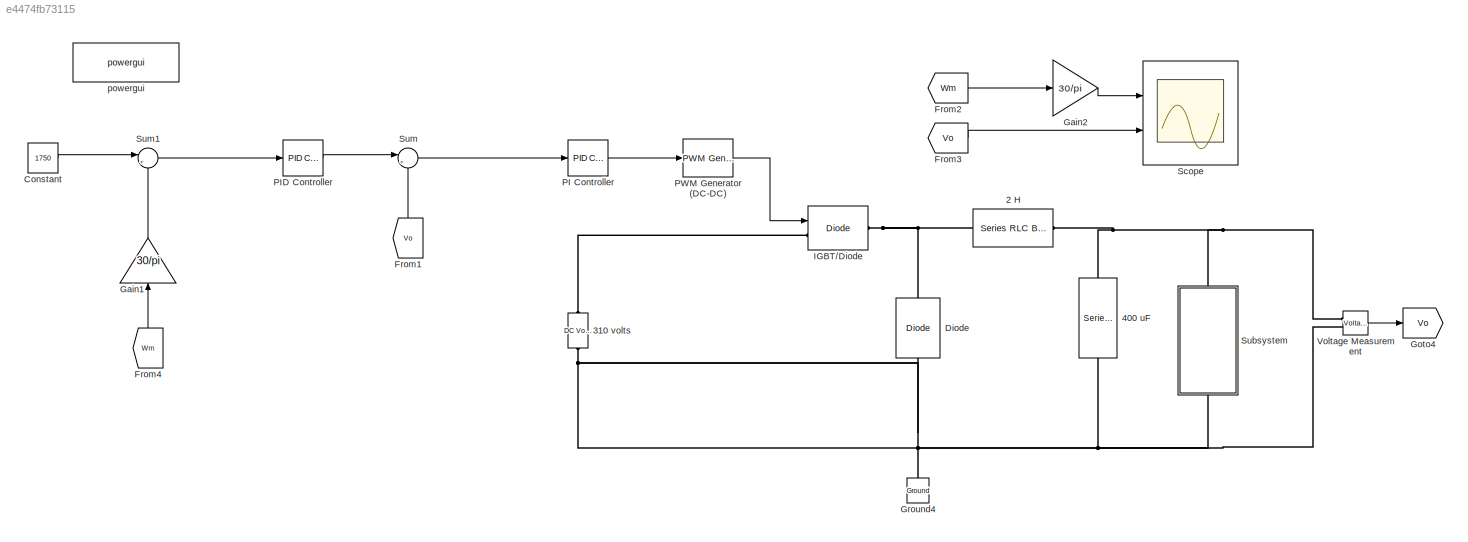
MODEL slx_e4474fb73115
KIND model
CONFIG AbsTol = auto
CONFIG EnableMultiTasking = off
CONFIG FixedStep = auto
CONFIG MaxStep = auto
CONFIG MinStep = auto
CONFIG RelTol = 1e-3
CONFIG SampleTimeConstraint = Unconstrained
CONFIG Solver = VariableStepAuto
CONFIG SolverName = VariableStepAuto
CONFIG StartTime = 0.0
CONFIG StopTime = 12
BLOCK [Reference] 2 H  REF=powerlib/Elements/Series RLC Branch
  Ports = [0, 0, 0, 0, 0, 1, 1]
  SourceBlock = powerlib/Elements/Series RLC Branch
  SourceType = Series RLC Branch
BLOCK [Reference] 310 volts  REF=powerlib/Electrical
Sources/DC Voltage Source
  Ports = [0, 0, 0, 0, 0, 1, 1]
  SourceBlock = powerlib/Electrical\nSources/DC Voltage Source
  SourceType = DC Voltage Source
BLOCK [Reference] 400 uF  REF=powerlib/Elements/Series RLC Branch
  Ports = [0, 0, 0, 0, 0, 1, 1]
  SourceBlock = powerlib/Elements/Series RLC Branch
  SourceType = Series RLC Branch
BLOCK [Constant] Constant
  Value = 1750
BLOCK [Reference] Diode  REF=powerlib/Power
Electronics/Diode
  Ports = [0, 0, 0, 0, 0, 1, 1]
  SourceBlock = powerlib/Power\nElectronics/Diode
  SourceType = Diode
BLOCK [From] From1
  GotoTag = Vo
BLOCK [From] From2
  GotoTag = Wm
  TagVisibility = global
BLOCK [From] From3
  GotoTag = Vo
BLOCK [From] From4
  GotoTag = Wm
  TagVisibility = global
BLOCK [Gain] Gain1
  Gain = 30/pi
  OutDataTypeStr = Inherit: Inherit via internal rule
  ParamDataTypeStr = Inherit: Inherit via internal rule
  SaturateOnIntegerOverflow = off
BLOCK [Gain] Gain2
  Gain = 30/pi
  OutDataTypeStr = Inherit: Inherit via internal rule
  ParamDataTypeStr = Inherit: Inherit via internal rule
  SaturateOnIntegerOverflow = off
BLOCK [Goto] Goto4
  GotoTag = Vo
BLOCK [Reference] Ground4  REF=powerlib/Elements/Ground
  Ports = [0, 0, 0, 0, 0, 1]
  SourceBlock = powerlib/Elements/Ground
  SourceType = Ground
BLOCK [Reference] IGBT//Diode  REF=powerlib/Power
Electronics/IGBT//Diode
  Ports = [1, 0, 0, 0, 0, 1, 1]
  SourceBlock = powerlib/Power\nElectronics/IGBT//Diode
  SourceType = IGBT/Diode
BLOCK [Reference] PI Controller  REF=simulink/Continuous/PID Controller
  Ports = [1, 1]
  SourceBlock = simulink/Continuous/PID Controller
  SourceType = PID 1dof
BLOCK [Reference] PID Controller  REF=simulink/Continuous/PID Controller
  Ports = [1, 1]
  SourceBlock = simulink/Continuous/PID Controller
  SourceType = PID 1dof
BLOCK [Reference] PWM Generator (DC-DC)  REF=powerlib_meascontrol/Pulse & Signal
Generators/PWM Generator
(DC-DC)
  Ports = [1, 1]
  SourceBlock = powerlib_meascontrol/Pulse & Signal\nGenerators/PWM Generator\n(DC-DC)
  SourceType = PWM Generator (DC-DC)
BLOCK [Scope] Scope
  NumInputPorts = 2
  Ports = [2]
  ScopeSpecificationString = Simulink.scopes.TimeScopeBlockCfg('CurrentConfiguration', extmgr.ConfigurationSet(extmgr.Configuration('Core','General UI',true),extmgr.Configuration('Core','Source UI',true),extmgr.Configuration('Sources','WiredSimulink',true,'DataLoggingVariableName','ScopeData1'),extmgr.Configuration('Visuals','Time Domain',true,'SerializedDisplays',{struct('MinYLimReal','1410.63302','MaxYLimReal','1973.21418',...<+2067ch>
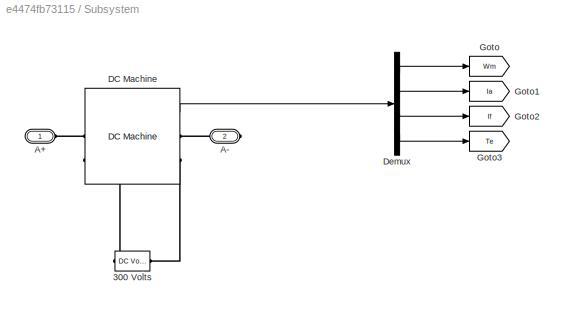
BLOCK [SubSystem] Subsystem
  Ports = [0, 0, 0, 0, 0, 1, 1]
  RequestExecContextInheritance = off
  Variant = off
BLOCK [Reference] Subsystem/300 Volts  REF=powerlib/Electrical
Sources/DC Voltage Source
  Ports = [0, 0, 0, 0, 0, 1, 1]
  SourceBlock = powerlib/Electrical\nSources/DC Voltage Source
  SourceType = DC Voltage Source
BLOCK [PMIOPort] Subsystem/A+
  Port = 1
  Side = Left
BLOCK [PMIOPort] Subsystem/A-
  Port = 2
  Side = Right
BLOCK [Reference] Subsystem/DC Machine  REF=powerlib/Machines/DC Machine
  Ports = [1, 1, 0, 0, 0, 2, 2]
  SourceBlock = powerlib/Machines/DC Machine
  SourceType = DC machine
BLOCK [Demux] Subsystem/Demux
  DisplayOption = bar
  Ports = [1, 4]
BLOCK [Goto] Subsystem/Goto
  GotoTag = Wm
  TagVisibility = global
BLOCK [Goto] Subsystem/Goto1
  GotoTag = Ia
BLOCK [Goto] Subsystem/Goto2
  GotoTag = If
BLOCK [Goto] Subsystem/Goto3
  GotoTag = Te
  TagVisibility = global
BLOCK [Sum] Sum
  IconShape = round
  InputSameDT = off
  Inputs = |+-
  OutDataTypeStr = Inherit: Inherit via internal rule
  Ports = [2, 1]
  SaturateOnIntegerOverflow = off
BLOCK [Sum] Sum1
  IconShape = round
  InputSameDT = off
  Inputs = |+-
  OutDataTypeStr = Inherit: Inherit via internal rule
  Ports = [2, 1]
  SaturateOnIntegerOverflow = off
BLOCK [Reference] Voltage Measurement  REF=powerlib/Measurements/Voltage Measurement
  Ports = [0, 1, 0, 0, 0, 2]
  SourceBlock = powerlib/Measurements/Voltage Measurement
  SourceType = Voltage Measurement
  UserDataPersistent = on
BLOCK [Reference] powergui  REF=powerlib/powergui
  Ports = []
  Priority = 1
  SourceBlock = powerlib/powergui
  SourceType = PSB option menu block
LINE Constant:1 -> Sum1:1
LINE From1:1 -> Sum:2
LINE From2:1 -> Gain2:1
LINE From3:1 -> Scope:2
LINE From4:1 -> Gain1:1
LINE Gain1:1 -> Sum1:2
LINE Gain2:1 -> Scope:1
LINE PI Controller:1 -> PWM Generator (DC-DC):1
LINE PID Controller:1 -> Sum:1
LINE PWM Generator (DC-DC):1 -> IGBT//Diode:1
LINE Subsystem/DC Machine:1 -> Subsystem/Demux:1
LINE Subsystem/Demux:1 -> Subsystem/Goto:1
LINE Subsystem/Demux:2 -> Subsystem/Goto1:1
LINE Subsystem/Demux:3 -> Subsystem/Goto2:1
LINE Subsystem/Demux:4 -> Subsystem/Goto3:1
LINE Sum1:1 -> PID Controller:1
LINE Sum:1 -> PI Controller:1
LINE Voltage Measurement:1 -> Goto4:1
PNET net1: 2 H:LConn1 -- 400 uF:LConn1 -- Subsystem:LConn1 -- Voltage Measurement:LConn1
PNET net2: 2 H:RConn1 -- Diode:RConn1 -- IGBT//Diode:RConn1
PNET net3: 310 volts:LConn1 -- 400 uF:RConn1 -- Diode:LConn1 -- Ground4:LConn1 -- Subsystem:RConn1 -- Voltage Measurement:LConn2
PLINE 310 volts:RConn1 -- IGBT//Diode:LConn1
PLINE Subsystem/300 Volts:LConn1 -- Subsystem/DC Machine:RConn2
PLINE Subsystem/300 Volts:RConn1 -- Subsystem/DC Machine:LConn2
PLINE Subsystem/A+:RConn1 -- Subsystem/DC Machine:LConn1
PLINE Subsystem/A-:RConn1 -- Subsystem/DC Machine:RConn1
note: PNET lines group multi-terminal physical nets as a canonical sorted terminal list (undirected conserving connections); 2-terminal nets keep the pairwise PLINE form
